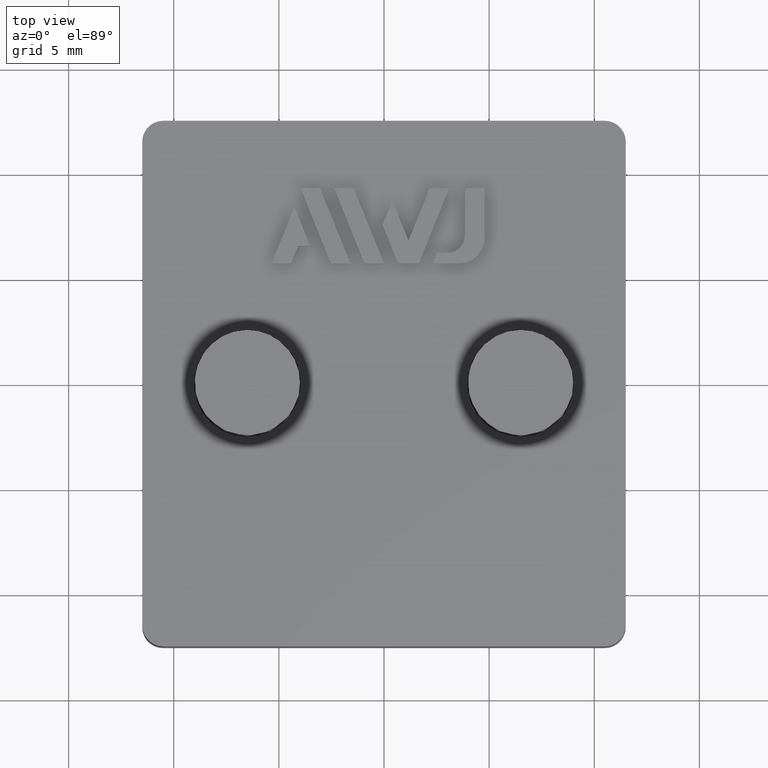
[diagram: clean part render]
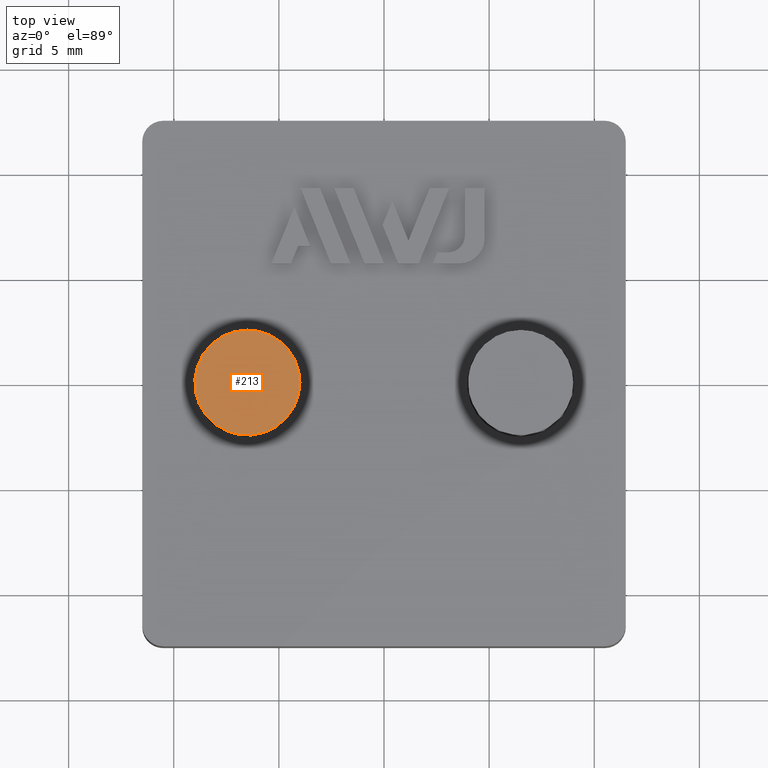
[diagram: same view with one face highlighted and labeled with its STEP entity id]
A machine part, top view. The second image highlights one B-rep face of the part: STEP entity #213.
In plain terms, the highlighted planar face has unit normal (0, -0, -1).
Its self-contained STEP definition (entity closure, byte-faithful):
#213 = ADVANCED_FACE( '', ( #537 ), #538, .F. );
#537 = FACE_OUTER_BOUND( '', #883, .T. );
#538 = PLANE( '', #884 );
#883 = EDGE_LOOP( '', ( #2055 ) );
#884 = AXIS2_PLACEMENT_3D( '', #2056, #2057, #2058 );
#2055 = ORIENTED_EDGE( '', *, *, #2579, .F. );
#2056 = CARTESIAN_POINT( '', ( -6.50000000000000, 0.000165124598850681, 7.50000000000000 ) );
#2057 = DIRECTION( '', ( 0.000000000000000, -6.12303176911189E-017, -1.00000000000000 ) );
#2058 = DIRECTION( '', ( 1.00000000000000, 0.000000000000000, 0.000000000000000 ) );
#2579 = EDGE_CURVE( '', #3235, #3235, #3236, .T. );
#3235 = VERTEX_POINT( '', #4262 );
#3236 = CIRCLE( '', #4263, 2.50000000000000 );
#4262 = CARTESIAN_POINT( '', ( -4.00000000000000, 0.000165124598850681, 7.50000000000000 ) );
#4263 = AXIS2_PLACEMENT_3D( '', #4723, #4724, #4725 );
#4723 = CARTESIAN_POINT( '', ( -6.50000000000000, 0.000165124598850681, 7.50000000000000 ) );
#4724 = DIRECTION( '', ( 0.000000000000000, -6.12303176911189E-017, -1.00000000000000 ) );
#4725 = DIRECTION( '', ( 1.00000000000000, 0.000000000000000, 0.000000000000000 ) );